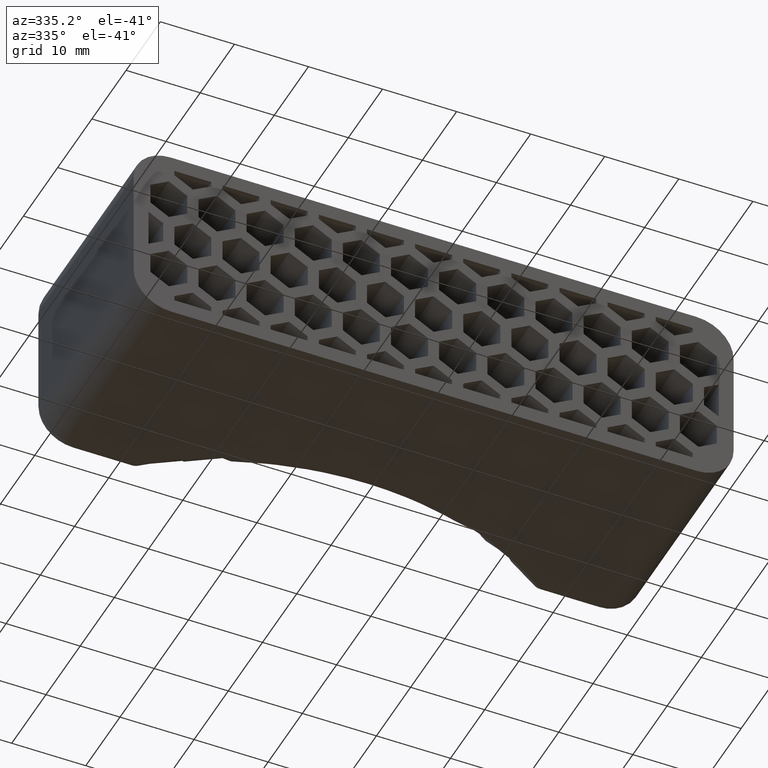
[diagram: clean part render]
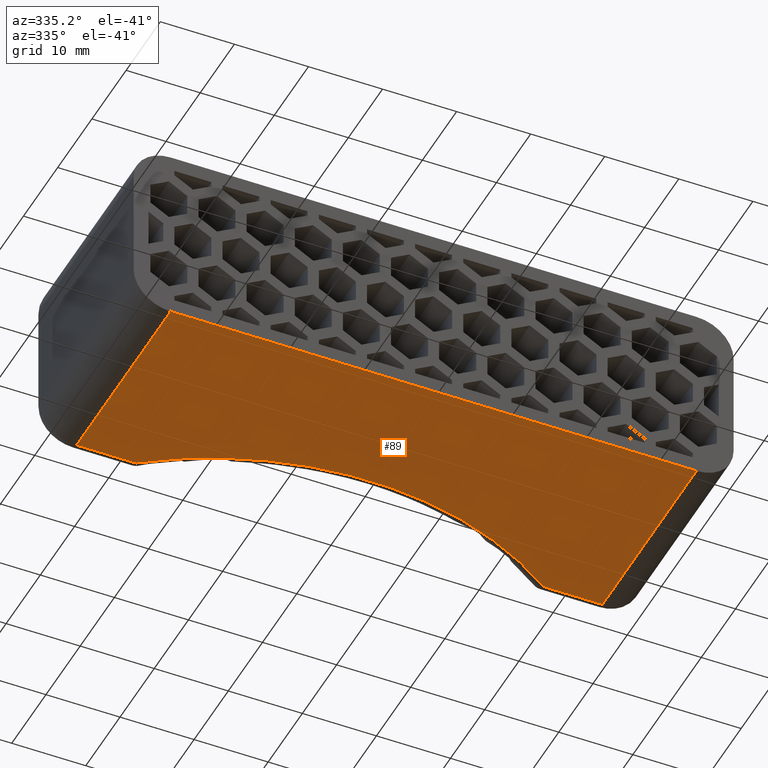
[diagram: same view with one face highlighted and labeled with its STEP entity id]
A machine part, auxiliary view. The second image highlights one B-rep face of the part: STEP entity #89.
In plain terms, the highlighted planar face has unit normal (0, 0, -1).
Its self-contained STEP definition (entity closure, byte-faithful):
#89 = ADVANCED_FACE( '', ( #628 ), #629, .T. );
#628 = FACE_OUTER_BOUND( '', #1612, .T. );
#629 = PLANE( '', #1613 );
#1612 = EDGE_LOOP( '', ( #2968, #2969, #2970, #2971, #2972, #2973 ) );
#1613 = AXIS2_PLACEMENT_3D( '', #2974, #2975, #2976 );
#2968 = ORIENTED_EDGE( '', *, *, #6603, .T. );
#2969 = ORIENTED_EDGE( '', *, *, #6601, .T. );
#2970 = ORIENTED_EDGE( '', *, *, #6604, .T. );
#2971 = ORIENTED_EDGE( '', *, *, #6605, .T. );
#2972 = ORIENTED_EDGE( '', *, *, #6606, .T. );
#2973 = ORIENTED_EDGE( '', *, *, #6536, .F. );
#2974 = CARTESIAN_POINT( '', ( 0.000000000000000, 65.0500000000000, -12.5000000000000 ) );
#2975 = DIRECTION( '', ( 0.000000000000000, 0.000000000000000, -1.00000000000000 ) );
#2976 = DIRECTION( '', ( 0.000000000000000, 1.00000000000000, 0.000000000000000 ) );
#6536 = EDGE_CURVE( '', #8026, #8027, #8028, .T. );
#6601 = EDGE_CURVE( '', #8140, #8145, #8147, .F. );
#6603 = EDGE_CURVE( '', #8026, #8140, #8149, .F. );
#6604 = EDGE_CURVE( '', #8145, #8150, #8151, .F. );
#6605 = EDGE_CURVE( '', #8150, #8152, #8153, .F. );
#6606 = EDGE_CURVE( '', #8152, #8027, #8154, .F. );
#8026 = VERTEX_POINT( '', #10284 );
#8027 = VERTEX_POINT( '', #10285 );
#8028 = LINE( '', #10286, #10287 );
#8140 = VERTEX_POINT( '', #10448 );
#8145 = VERTEX_POINT( '', #10453 );
#8147 = LINE( '', #10455, #10456 );
#8149 = LINE( '', #10459, #10460 );
#8150 = VERTEX_POINT( '', #10461 );
#8151 = CIRCLE( '', #10462, 46.5500000000000 );
#8152 = VERTEX_POINT( '', #10463 );
#8153 = LINE( '', #10464, #10465 );
#8154 = LINE( '', #10466, #10467 );
#10284 = CARTESIAN_POINT( '', ( -35.5000000000000, -1.38777878078145E-014, -12.5000000000000 ) );
#10285 = CARTESIAN_POINT( '', ( 35.5000000000000, -1.38777878078145E-014, -12.5000000000000 ) );
#10286 = CARTESIAN_POINT( '', ( -65.5000000000000, -1.38777878078145E-014, -12.5000000000000 ) );
#10287 = VECTOR( '', #12518, 1000.00000000000 );
#10448 = CARTESIAN_POINT( '', ( -35.5000000000000, 27.5000000000000, -12.5000000000000 ) );
#10453 = CARTESIAN_POINT( '', ( -27.5118156434649, 27.5000000000000, -12.5000000000000 ) );
#10455 = CARTESIAN_POINT( '', ( 0.000000000000000, 27.5000000000000, -12.5000000000000 ) );
#10456 = VECTOR( '', #12613, 1000.00000000000 );
#10459 = CARTESIAN_POINT( '', ( -35.5000000000000, 65.0500000000000, -12.5000000000000 ) );
#10460 = VECTOR( '', #12615, 1000.00000000000 );
#10461 = CARTESIAN_POINT( '', ( 27.5118156434649, 27.5000000000000, -12.5000000000000 ) );
#10462 = AXIS2_PLACEMENT_3D( '', #12616, #12617, #12618 );
#10463 = CARTESIAN_POINT( '', ( 35.5000000000000, 27.5000000000000, -12.5000000000000 ) );
#10464 = CARTESIAN_POINT( '', ( 0.000000000000000, 27.5000000000000, -12.5000000000000 ) );
#10465 = VECTOR( '', #12619, 1000.00000000000 );
#10466 = CARTESIAN_POINT( '', ( 35.5000000000000, 65.0500000000000, -12.5000000000000 ) );
#10467 = VECTOR( '', #12620, 1000.00000000000 );
#12518 = DIRECTION( '', ( 1.00000000000000, 0.000000000000000, 0.000000000000000 ) );
#12613 = DIRECTION( '', ( -1.00000000000000, 0.000000000000000, 0.000000000000000 ) );
#12615 = DIRECTION( '', ( -6.93889390390723E-017, -1.00000000000000, 0.000000000000000 ) );
#12616 = CARTESIAN_POINT( '', ( 0.000000000000000, 65.0500000000000, -12.5000000000000 ) );
#12617 = DIRECTION( '', ( 0.000000000000000, 0.000000000000000, -1.00000000000000 ) );
#12618 = DIRECTION( '', ( -1.00000000000000, 0.000000000000000, 0.000000000000000 ) );
#12619 = DIRECTION( '', ( -1.00000000000000, 0.000000000000000, 0.000000000000000 ) );
#12620 = DIRECTION( '', ( 6.93889390390723E-017, 1.00000000000000, 0.000000000000000 ) );